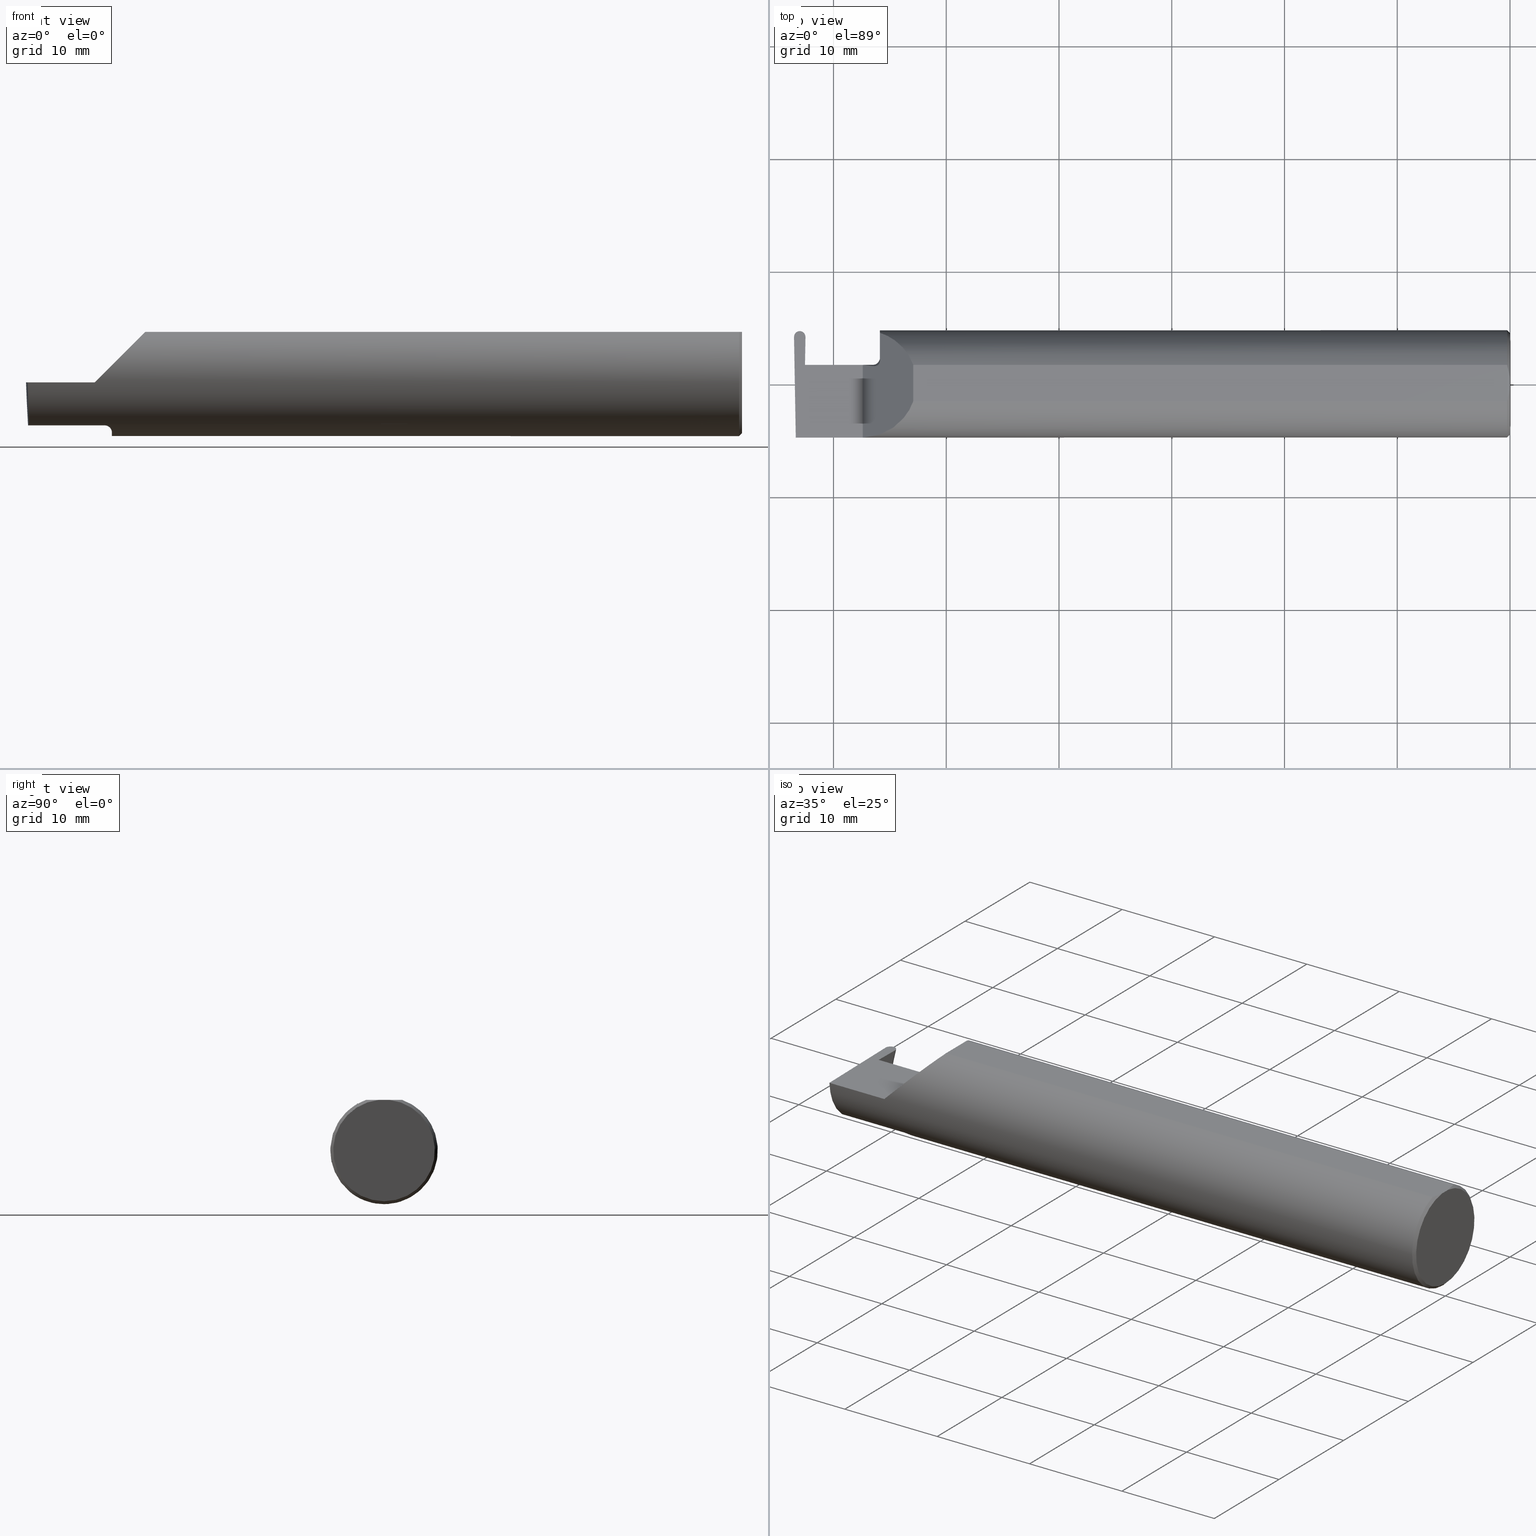
[diagram: canonical four-view strip — front | top / right | iso, engineering-drawing reading convention]
A machine part, canonical four-view strip (front | top / right | iso — engineering-drawing reading convention). The complete STEP part file that produces these views, byte-faithful:
ISO-10303-21;
HEADER;
FILE_DESCRIPTION (( 'STEP AP203' ),
    '1' );
FILE_NAME ('222998-LHGFR039-4.STEP',
    '2024-09-16T19:26:08',
    ( '' ),
    ( '' ),
    'SwSTEP 2.0',
    'SolidWorks 2024',
    '' );
FILE_SCHEMA (( 'CONFIG_CONTROL_DESIGN' ));
ENDSEC;

DATA;
#1 = CARTESIAN_POINT ( 'NONE',  ( -2.225000000000000089, 0.06235952145814824960, 0.03500000000000001721 ) ) ;
#2 = DIRECTION ( 'NONE',  ( 0.000000000000000000, 1.000000000000000000, 0.000000000000000000 ) ) ;
#3 = DIRECTION ( 'NONE',  ( 1.342342146396802078E-16, -1.000000000000000000, 0.000000000000000000 ) ) ;
#4 = DIRECTION ( 'NONE',  ( -0.03858184836401801904, -0.3087869137032490663, -0.9503484007996426675 ) ) ;
#5 = ORIENTED_EDGE ( 'NONE', *, *, #510, .F. ) ;
#6 = EDGE_CURVE ( 'NONE', #422, #271, #44, .T. ) ;
#7 = DIRECTION ( 'NONE',  ( 0.01745240643727692317, -0.9998476951563912696, -8.711430322362906158E-17 ) ) ;
#8 = CARTESIAN_POINT ( 'NONE',  ( 0.000000000000000000, -0.06327716807822586498, 0.1764999999999998792 ) ) ;
#9 = ORIENTED_EDGE ( 'NONE', *, *, #355, .T. ) ;
#10 = CC_DESIGN_PERSON_AND_ORGANIZATION_ASSIGNMENT ( #161, #435, ( #114 ) ) ;
#11 = CARTESIAN_POINT ( 'NONE',  ( -2.476052158195895192, 0.1950338670565867627, 0.09714126877284541550 ) ) ;
#12 = CARTESIAN_POINT ( 'NONE',  ( 0.000000000000000000, 0.000000000000000000, 0.000000000000000000 ) ) ;
#13 = VERTEX_POINT ( 'NONE', #498 ) ;
#14 = CARTESIAN_POINT ( 'NONE',  ( -2.461673250476406061, 0.06649999999999985090, 0.000000000000000000 ) ) ;
#15 = CARTESIAN_POINT ( 'NONE',  ( -2.467673046314851515, -2.404391407359919519, -0.08275932408513385352 ) ) ;
#16 = VERTEX_POINT ( 'NONE', #329 ) ;
#17 = EDGE_CURVE ( 'NONE', #396, #670, #700, .T. ) ;
#18 =( BOUNDED_CURVE ( )  B_SPLINE_CURVE ( 3, ( #358, #576, #144, #365 ),
 .UNSPECIFIED., .F., .T. ) 
 B_SPLINE_CURVE_WITH_KNOTS ( ( 4, 4 ),
 ( 1.570796326794914544, 1.636189208186702881 ),
 .UNSPECIFIED. ) 
 CURVE ( )  GEOMETRIC_REPRESENTATION_ITEM ( )  RATIONAL_B_SPLINE_CURVE ( ( 1.000000000000000000, 0.9996436793342354798, 0.9996436793342354798, 1.000000000000000000 ) ) 
 REPRESENTATION_ITEM ( '' )  );
#19 = VECTOR ( 'NONE', #240, 39.37007874015748143 ) ;
#20 = MECHANICAL_CONTEXT ( 'NONE', #536, 'mechanical' ) ;
#21 = CARTESIAN_POINT ( 'NONE',  ( -2.260000000000000231, 0.06649999999999985090, 2.939152317953647352E-17 ) ) ;
#22 = EDGE_CURVE ( 'NONE', #250, #369, #325, .T. ) ;
#23 = ORIENTED_EDGE ( 'NONE', *, *, #6, .F. ) ;
#24 = CARTESIAN_POINT ( 'NONE',  ( -2.454248160353849961, 0.06613460753897326683, -0.01046347106162535609 ) ) ;
#25 = DIRECTION ( 'NONE',  ( -1.000000000000000000, 4.597460811137283626E-16, 0.000000000000000000 ) ) ;
#26 = EDGE_LOOP ( 'NONE', ( #399, #95, #407, #597 ) ) ;
#27 = FACE_OUTER_BOUND ( 'NONE', #524, .T. ) ;
#28 = ORIENTED_EDGE ( 'NONE', *, *, #415, .F. ) ;
#29 = EDGE_CURVE ( 'NONE', #98, #65, #208, .T. ) ;
#30 = CIRCLE ( 'NONE', #126, 0.1875000000000000278 ) ;
#31 = DIRECTION ( 'NONE',  ( 1.000000000000000000, -4.597460811137283626E-16, -0.000000000000000000 ) ) ;
#32 = CARTESIAN_POINT ( 'NONE',  ( 0.000000000000000000, 0.000000000000000000, 0.000000000000000000 ) ) ;
#33 = VECTOR ( 'NONE', #406, 39.37007874015748143 ) ;
#34 = EDGE_LOOP ( 'NONE', ( #575, #680, #317, #486, #622, #190, #639, #471, #453 ) ) ;
#35 = APPROVAL_DATE_TIME ( #315, #293 ) ;
#36 = APPROVAL ( #648, 'UNSPECIFIED' ) ;
#37 = CARTESIAN_POINT ( 'NONE',  ( -2.491081625543046130, 0.1709496480863398338, -0.03920340345680967814 ) ) ;
#38 = ORIENTED_EDGE ( 'NONE', *, *, #87, .F. ) ;
#39 = CARTESIAN_POINT ( 'NONE',  ( -2.200000000000000178, 0.1874999999999999445, 0.000000000000000000 ) ) ;
#40 = ORIENTED_EDGE ( 'NONE', *, *, #559, .F. ) ;
#41 = EDGE_CURVE ( 'NONE', #16, #632, #493, .T. ) ;
#42 = AXIS2_PLACEMENT_3D ( 'NONE', #153, #541, #205 ) ;
#43 = FACE_OUTER_BOUND ( 'NONE', #360, .T. ) ;
#44 = LINE ( 'NONE', #50, #252 ) ;
#45 = ADVANCED_FACE ( 'NONE', ( #441 ), #336, .T. ) ;
#46 = CARTESIAN_POINT ( 'NONE',  ( -2.462797441937035980, 0.1408215355924573031, -0.06933151595069252104 ) ) ;
#47 =( BOUNDED_CURVE ( )  B_SPLINE_CURVE ( 3, ( #297, #117, #290, #551 ),
 .UNSPECIFIED., .F., .F. ) 
 B_SPLINE_CURVE_WITH_KNOTS ( ( 4, 4 ),
 ( 1.683182027770899536, 3.259781963246014325 ),
 .UNSPECIFIED. ) 
 CURVE ( )  GEOMETRIC_REPRESENTATION_ITEM ( )  RATIONAL_B_SPLINE_CURVE ( ( 1.000000000000000000, 0.8033679476376960338, 0.8033679476376960338, 1.000000000000000000 ) ) 
 REPRESENTATION_ITEM ( '' )  );
#48 = CARTESIAN_POINT ( 'NONE',  ( -2.200000000000000178, 0.1776407892349053386, 0.05999999999999953981 ) ) ;
#49 = DIRECTION ( 'NONE',  ( -0.000000000000000000, -0.7071067811865434649, -0.7071067811865515695 ) ) ;
#50 = CARTESIAN_POINT ( 'NONE',  ( -2.083499999999998575, -0.2500000000000000555, 0.1764999999999998792 ) ) ;
#51 = APPLICATION_CONTEXT ( 'configuration controlled 3d designs of mechanical parts and assemblies' ) ;
#52 = ORIENTED_EDGE ( 'NONE', *, *, #22, .F. ) ;
#53 = PERSON_AND_ORGANIZATION ( #61, #434 ) ;
#54 = CARTESIAN_POINT ( 'NONE',  ( -2.479744952083222209, 0.1844999999999999696, 0.000000000000000000 ) ) ;
#55 = CIRCLE ( 'NONE', #168, 0.1750000000000001277 ) ;
#56 = CARTESIAN_POINT ( 'NONE',  ( -2.476527545332700253, 0.1549393306165267881, -0.09097838550939568725 ) ) ;
#57 = AXIS2_PLACEMENT_3D ( 'NONE', #580, #361, #302 ) ;
#58 = CYLINDRICAL_SURFACE ( 'NONE', #91, 0.01999999999999999001 ) ;
#59 = CYLINDRICAL_SURFACE ( 'NONE', #615, 0.01999999999999998307 ) ;
#60 = LINE ( 'NONE', #341, #33 ) ;
#61 = PERSON ( 'UNSPECIFIED', 'UNSPECIFIED', 'UNSPECIFIED', ('UNSPECIFIED'), ('UNSPECIFIED'), ('UNSPECIFIED') ) ;
#62 = CARTESIAN_POINT ( 'NONE',  ( -2.222331837506049901, 0.06171927743178083625, 0.03766816249394999011 ) ) ;
#63 = FACE_OUTER_BOUND ( 'NONE', #386, .T. ) ;
#64 = AXIS2_PLACEMENT_3D ( 'NONE', #617, #443, #440 ) ;
#65 = VERTEX_POINT ( 'NONE', #548 ) ;
#66 = AXIS2_PLACEMENT_3D ( 'NONE', #684, #688, #243 ) ;
#67 = DIRECTION ( 'NONE',  ( -0.03490480639812536257, 0.000000000000000000, 0.9993906415863165194 ) ) ;
#68 = LINE ( 'NONE', #291, #456 ) ;
#69 = ORIENTED_EDGE ( 'NONE', *, *, #355, .F. ) ;
#70 = CARTESIAN_POINT ( 'NONE',  ( -2.461673250476406061, 0.06649999999999985090, 9.464000087685198136E-21 ) ) ;
#71 = DIRECTION ( 'NONE',  ( 1.000000000000000000, 0.000000000000000000, 1.224646799147353947E-16 ) ) ;
#72 = EDGE_CURVE ( 'NONE', #564, #150, #609, .T. ) ;
#73 = VERTEX_POINT ( 'NONE', #322 ) ;
#74 = CARTESIAN_POINT ( 'NONE',  ( -2.219643712645606559, 0.06142137645965354414, 0.04035628735439345666 ) ) ;
#75 = EDGE_CURVE ( 'NONE', #175, #102, #389, .T. ) ;
#76 = CARTESIAN_POINT ( 'NONE',  ( -0.009999999999999927350, 0.06327716807822586498, 0.1764999999999998792 ) ) ;
#77 = ORIENTED_EDGE ( 'NONE', *, *, #363, .T. ) ;
#78 = AXIS2_PLACEMENT_3D ( 'NONE', #39, #25, #631 ) ;
#79 = CC_DESIGN_APPROVAL ( #36, ( #114 ) ) ;
#80 = CLOSED_SHELL ( 'NONE', ( #256, #280, #583, #179, #367, #226, #45, #151, #334, #685, #499, #705, #437, #552, #529, #120, #445, #539, #502 ) ) ;
#81 = FACE_OUTER_BOUND ( 'NONE', #34, .T. ) ;
#82 = PLANE ( 'NONE',  #57 ) ;
#83 = VERTEX_POINT ( 'NONE', #600 ) ;
#84 = LINE ( 'NONE', #675, #535 ) ;
#85 = CARTESIAN_POINT ( 'NONE',  ( -2.498079812865068750, 0.1582181512725873151, -0.05193490027056232167 ) ) ;
#86 = ORIENTED_EDGE ( 'NONE', *, *, #149, .T. ) ;
#87 = EDGE_CURVE ( 'NONE', #271, #632, #147, .T. ) ;
#88 = LINE ( 'NONE', #308, #579 ) ;
#89 = CARTESIAN_POINT ( 'NONE',  ( -2.225000000000000089, 0.06235952145814824960, 0.03500000000000001721 ) ) ;
#90 = ORIENTED_EDGE ( 'NONE', *, *, #550, .T. ) ;
#91 = AXIS2_PLACEMENT_3D ( 'NONE', #207, #425, #427 ) ;
#92 = VECTOR ( 'NONE', #397, 39.37007874015748143 ) ;
#93 = CALENDAR_DATE ( 2024, 16, 9 ) ;
#94 = DIRECTION ( 'NONE',  ( -1.000000000000000000, 0.000000000000000000, 0.000000000000000000 ) ) ;
#95 = ORIENTED_EDGE ( 'NONE', *, *, #651, .F. ) ;
#96 =( NAMED_UNIT ( * ) PLANE_ANGLE_UNIT ( ) SI_UNIT ( $, .RADIAN. ) );
#97 = DIRECTION ( 'NONE',  ( 0.000000000000000000, -1.000000000000000000, 0.000000000000000000 ) ) ;
#98 = VERTEX_POINT ( 'NONE', #160 ) ;
#99 = EDGE_CURVE ( 'NONE', #650, #619, #332, .T. ) ;
#100 = DATE_AND_TIME ( #373, #125 ) ;
#101 = DIRECTION ( 'NONE',  ( -0.000000000000000000, -1.000000000000000000, -8.711249979796742745E-17 ) ) ;
#102 = VERTEX_POINT ( 'NONE', #655 ) ;
#103 = APPROVAL_ROLE ( '' ) ;
#104 = AXIS2_PLACEMENT_3D ( 'NONE', #495, #653, #101 ) ;
#105 = DIRECTION ( 'NONE',  ( -0.7071067811865523467, 0.000000000000000000, -0.7071067811865426878 ) ) ;
#106 = VERTEX_POINT ( 'NONE', #604 ) ;
#107 = FACE_OUTER_BOUND ( 'NONE', #416, .T. ) ;
#108 = DIRECTION ( 'NONE',  ( 0.000000000000000000, 1.000000000000000000, 0.000000000000000000 ) ) ;
#109 = EDGE_CURVE ( 'NONE', #73, #247, #282, .T. ) ;
#110 = SHAPE_DEFINITION_REPRESENTATION ( #143, #549 ) ;
#111 = FACE_OUTER_BOUND ( 'NONE', #187, .T. ) ;
#112 = CARTESIAN_POINT ( 'NONE',  ( 0.000000000000000000, 0.000000000000000000, 0.000000000000000000 ) ) ;
#113 = CARTESIAN_POINT ( 'NONE',  ( -2.459982749943019797, 0.1633487106945233358, 0.000000000000000000 ) ) ;
#114 = PRODUCT_DEFINITION_FORMATION_WITH_SPECIFIED_SOURCE ( 'ANY', '', #333, .NOT_KNOWN. ) ;
#115 = CARTESIAN_POINT ( 'NONE',  ( -2.459973378056905080, 0.1634237178782527444, 0.0002308483745339323472 ) ) ;
#116 = VECTOR ( 'NONE', #295, 39.37007874015748143 ) ;
#117 = CARTESIAN_POINT ( 'NONE',  ( -2.500199259956601860, 0.1757239095557345532, -2.477352571440049085E-18 ) ) ;
#118 = CARTESIAN_POINT ( 'NONE',  ( -2.495384912923582998, 0.1067702593436240383, -0.1033827921995262022 ) ) ;
#119 = CARTESIAN_POINT ( 'NONE',  ( -2.492943049790546262, 0.06015305154315075259, -0.1500000000000000500 ) ) ;
#120 = ADVANCED_FACE ( 'NONE', ( #669 ), #570, .F. ) ;
#121 = DIRECTION ( 'NONE',  ( 1.000000000000000000, -4.597460811137283626E-16, -0.000000000000000000 ) ) ;
#122 = ORIENTED_EDGE ( 'NONE', *, *, #565, .T. ) ;
#123 = CARTESIAN_POINT ( 'NONE',  ( -2.454613552814876698, 0.06649999999999985090, 0.000000000000000000 ) ) ;
#124 = CARTESIAN_POINT ( 'NONE',  ( -2.200000000000000178, -0.07403853252698160137, -0.1723521670158846830 ) ) ;
#125 = LOCAL_TIME ( 12, 26, 8.000000000000000000, #318 ) ;
#126 = AXIS2_PLACEMENT_3D ( 'NONE', #344, #526, #678 ) ;
#127 = ORIENTED_EDGE ( 'NONE', *, *, #87, .T. ) ;
#128 = VECTOR ( 'NONE', #452, 39.37007874015748143 ) ;
#129 = LINE ( 'NONE', #657, #466 ) ;
#130 = PLANE ( 'NONE',  #525 ) ;
#131 = ORIENTED_EDGE ( 'NONE', *, *, #75, .F. ) ;
#132 = EDGE_CURVE ( 'NONE', #259, #83, #306, .T. ) ;
#133 = DIRECTION ( 'NONE',  ( 0.9992386149554827179, 0.01744177490282357301, 0.03489949670250104552 ) ) ;
#134 = CARTESIAN_POINT ( 'NONE',  ( -2.213208340743105129, -0.1123268376040813116, -0.1501472573737382687 ) ) ;
#135 = ORIENTED_EDGE ( 'NONE', *, *, #29, .T. ) ;
#136 = APPROVAL_ROLE ( '' ) ;
#137 = DIRECTION ( 'NONE',  ( 0.7071067811865436870, 0.000000000000000000, -0.7071067811865514585 ) ) ;
#138 = ORIENTED_EDGE ( 'NONE', *, *, #172, .T. ) ;
#139 = VECTOR ( 'NONE', #198, 39.37007874015748143 ) ;
#140 =( CONVERSION_BASED_UNIT ( 'INCH', #368 ) LENGTH_UNIT ( ) NAMED_UNIT ( #606 ) );
#141 = CARTESIAN_POINT ( 'NONE',  ( -2.467183016265471096, -0.08350000000000000477, -0.1500000000000000777 ) ) ;
#142 = ORIENTED_EDGE ( 'NONE', *, *, #132, .T. ) ;
#143 = PRODUCT_DEFINITION_SHAPE ( 'NONE', 'NONE',  #215 ) ;
#144 = CARTESIAN_POINT ( 'NONE',  ( -2.479983000000000271, 0.1755984408663672502, -0.02735005477480599925 ) ) ;
#145 = ORIENTED_EDGE ( 'NONE', *, *, #300, .T. ) ;
#146 = DIRECTION ( 'NONE',  ( -1.000000000000000000, 0.000000000000000000, 0.000000000000000000 ) ) ;
#147 =( BOUNDED_CURVE ( )  B_SPLINE_CURVE ( 3, ( #538, #279, #491, #48 ),
 .UNSPECIFIED., .F., .T. ) 
 B_SPLINE_CURVE_WITH_KNOTS ( ( 4, 4 ),
 ( 0.3442366722172838234, 1.245066839500269085 ),
 .UNSPECIFIED. ) 
 CURVE ( )  GEOMETRIC_REPRESENTATION_ITEM ( )  RATIONAL_B_SPLINE_CURVE ( ( 1.000000000000000000, 0.9335109851393532665, 0.9335109851393532665, 1.000000000000000000 ) ) 
 REPRESENTATION_ITEM ( '' )  );
#148 = ORIENTED_EDGE ( 'NONE', *, *, #488, .F. ) ;
#149 = EDGE_CURVE ( 'NONE', #362, #422, #298, .T. ) ;
#150 = VERTEX_POINT ( 'NONE', #618 ) ;
#151 = ADVANCED_FACE ( 'NONE', ( #454 ), #561, .F. ) ;
#152 = DATE_TIME_ROLE ( 'classification_date' ) ;
#153 = CARTESIAN_POINT ( 'NONE',  ( -2.225000000000000089, -0.08350000000000012967, 0.000000000000000000 ) ) ;
#154 = ORIENTED_EDGE ( 'NONE', *, *, #394, .T. ) ;
#155 = DIRECTION ( 'NONE',  ( 0.000000000000000000, -0.7071067811865515695, 0.7071067811865434649 ) ) ;
#156 = ORIENTED_EDGE ( 'NONE', *, *, #300, .F. ) ;
#157 = CARTESIAN_POINT ( 'NONE',  ( -2.467183016265471096, -0.08350000000000000477, -0.1500000000000000777 ) ) ;
#158 = EDGE_CURVE ( 'NONE', #98, #531, #232, .T. ) ;
#159 = VECTOR ( 'NONE', #2, 39.37007874015748143 ) ;
#160 = CARTESIAN_POINT ( 'NONE',  ( -2.497168558062964561, 0.1408215355924573031, -0.06933151595069254880 ) ) ;
#161 = PERSON_AND_ORGANIZATION ( #61, #434 ) ;
#162 = LINE ( 'NONE', #641, #627 ) ;
#163 = DIRECTION ( 'NONE',  ( -1.000000000000000000, 0.000000000000000000, 0.000000000000000000 ) ) ;
#164 = CC_DESIGN_DATE_AND_TIME_ASSIGNMENT ( #481, #598, ( #215 ) ) ;
#165 = CARTESIAN_POINT ( 'NONE',  ( -2.491841469758325989, -0.1875000000000000555, -0.05777037557894454389 ) ) ;
#166 = DIRECTION ( 'NONE',  ( 0.03858184836401813700, -0.3087869137032490108, -0.9503484007996424454 ) ) ;
#167 = DIRECTION ( 'NONE',  ( 0.000000000000000000, -0.9993908270190957621, 0.03489949670250104552 ) ) ;
#168 = AXIS2_PLACEMENT_3D ( 'NONE', #316, #574, #97 ) ;
#169 = SECURITY_CLASSIFICATION ( '', '', #484 ) ;
#170 = EDGE_LOOP ( 'NONE', ( #658, #533, #255, #687, #511 ) ) ;
#171 = AXIS2_PLACEMENT_3D ( 'NONE', #15, #244, #229 ) ;
#172 = EDGE_CURVE ( 'NONE', #392, #670, #654, .T. ) ;
#173 = DIRECTION ( 'NONE',  ( 1.342342146396802078E-16, -1.000000000000000000, 0.000000000000000000 ) ) ;
#174 = DIRECTION ( 'NONE',  ( 1.224646799147353947E-16, 0.000000000000000000, -1.000000000000000000 ) ) ;
#175 = VERTEX_POINT ( 'NONE', #555 ) ;
#176 = CARTESIAN_POINT ( 'NONE',  ( -2.200000000000000178, 0.06613460753897340560, -0.01046347106162164899 ) ) ;
#177 = CARTESIAN_POINT ( 'NONE',  ( -2.206307565795738501, -0.1025298007101598380, -0.1570730641124816751 ) ) ;
#178 = ORIENTED_EDGE ( 'NONE', *, *, #651, .T. ) ;
#179 = ADVANCED_FACE ( 'NONE', ( #665 ), #516, .T. ) ;
#180 = CARTESIAN_POINT ( 'NONE',  ( -2.206491315391052144, 0.06504110945230534568, 0.05350868460894738637 ) ) ;
#181 = DIRECTION ( 'NONE',  ( 0.03701368837992478206, -0.7066222423871548752, -0.7066222423871629799 ) ) ;
#182 = VECTOR ( 'NONE', #364, 39.37007874015748143 ) ;
#183 = ORIENTED_EDGE ( 'NONE', *, *, #528, .T. ) ;
#184 = LOCAL_TIME ( 12, 26, 8.000000000000000000, #476 ) ;
#185 = CARTESIAN_POINT ( 'NONE',  ( -2.490509681823388277, -0.07925450592887606227, -0.1500000000000000500 ) ) ;
#186 = CARTESIAN_POINT ( 'NONE',  ( -2.461673250476406061, 0.06649999999999985090, 9.464000087685198136E-21 ) ) ;
#187 = EDGE_LOOP ( 'NONE', ( #135, #183, #403, #222, #292 ) ) ;
#188 = CYLINDRICAL_SURFACE ( 'NONE', #504, 0.1500000000000001055 ) ;
#189 = CARTESIAN_POINT ( 'NONE',  ( -0.005155089261394574240, 0.04892095096109028152, 0.1764999999999998792 ) ) ;
#190 = ORIENTED_EDGE ( 'NONE', *, *, #99, .T. ) ;
#191 = FACE_OUTER_BOUND ( 'NONE', #666, .T. ) ;
#192 = CARTESIAN_POINT ( 'NONE',  ( -2.480221047916777000, 0.1844999999999999696, 0.000000000000000000 ) ) ;
#193 = EDGE_LOOP ( 'NONE', ( #223, #203, #245, #38, #507, #230, #352, #86, #626, #40, #211 ) ) ;
#194 = VECTOR ( 'NONE', #173, 39.37007874015748143 ) ;
#195 = CARTESIAN_POINT ( 'NONE',  ( -2.466962766597742274, 0.06130200698435633866, -0.1488510445587944708 ) ) ;
#196 = VERTEX_POINT ( 'NONE', #513 ) ;
#197 = COORDINATED_UNIVERSAL_TIME_OFFSET ( 8, 0, .BEHIND. ) ;
#198 = DIRECTION ( 'NONE',  ( 1.000000000000000000, -4.597460811137283626E-16, -0.000000000000000000 ) ) ;
#199 = ORIENTED_EDGE ( 'NONE', *, *, #475, .T. ) ;
#200 = EDGE_CURVE ( 'NONE', #106, #556, #284, .T. ) ;
#201 = LINE ( 'NONE', #469, #182 ) ;
#202 = CARTESIAN_POINT ( 'NONE',  ( -2.260000000000000231, -0.2500000000000000555, 2.939152317953647352E-17 ) ) ;
#203 = ORIENTED_EDGE ( 'NONE', *, *, #235, .T. ) ;
#204 = EDGE_CURVE ( 'NONE', #150, #330, #60, .T. ) ;
#205 = DIRECTION ( 'NONE',  ( 0.000000000000000000, -1.000000000000000000, 0.000000000000000000 ) ) ;
#206 = ORIENTED_EDGE ( 'NONE', *, *, #432, .T. ) ;
#207 = CARTESIAN_POINT ( 'NONE',  ( -2.476527545332700253, 0.1359182002906237363, -0.08479804562189673101 ) ) ;
#208 = LINE ( 'NONE', #590, #288 ) ;
#209 = EDGE_CURVE ( 'NONE', #670, #619, #236, .T. ) ;
#210 = CARTESIAN_POINT ( 'NONE',  ( 0.000000000000000000, -0.01881488772222998998, 0.1764999999999998792 ) ) ;
#211 = ORIENTED_EDGE ( 'NONE', *, *, #475, .F. ) ;
#212 = APPROVAL_DATE_TIME ( #269, #36 ) ;
#213 = CC_DESIGN_APPROVAL ( #326, ( #169 ) ) ;
#214 = CIRCLE ( 'NONE', #42, 0.1500000000000001610 ) ;
#215 = PRODUCT_DEFINITION ( 'UNKNOWN', '', #114, #264 ) ;
#216 = CARTESIAN_POINT ( 'NONE',  ( -0.005150925715430529697, -0.04890861373279827701, 0.1764999999999998792 ) ) ;
#217 = APPROVAL_PERSON_ORGANIZATION ( #623, #293, #136 ) ;
#218 = CARTESIAN_POINT ( 'NONE',  ( -2.454369957840858874, 0.06637810356725676320, -0.006981315626310356098 ) ) ;
#219 =( BOUNDED_CURVE ( )  B_SPLINE_CURVE ( 3, ( #157, #388, #278, #547 ),
 .UNSPECIFIED., .F., .T. ) 
 B_SPLINE_CURVE_WITH_KNOTS ( ( 4, 4 ),
 ( 3.176499238629666877, 4.677482395344764399 ),
 .UNSPECIFIED. ) 
 CURVE ( )  GEOMETRIC_REPRESENTATION_ITEM ( )  RATIONAL_B_SPLINE_CURVE ( ( 1.000000000000000000, 0.8209024677461195241, 0.8209024677461195241, 1.000000000000000000 ) ) 
 REPRESENTATION_ITEM ( '' )  );
#220 = PERSON_AND_ORGANIZATION_ROLE ( 'creator' ) ;
#221 = PLANE ( 'NONE',  #313 ) ;
#222 = ORIENTED_EDGE ( 'NONE', *, *, #376, .T. ) ;
#223 = ORIENTED_EDGE ( 'NONE', *, *, #303, .T. ) ;
#224 = CARTESIAN_POINT ( 'NONE',  ( -2.499996951313945726, 0.1641336551803448951, 0.000000000000000000 ) ) ;
#225 = ORIENTED_EDGE ( 'NONE', *, *, #528, .F. ) ;
#226 = ADVANCED_FACE ( 'NONE', ( #63 ), #130, .F. ) ;
#227 = DIRECTION ( 'NONE',  ( 0.000000000000000000, 0.000000000000000000, -1.000000000000000000 ) ) ;
#228 = CIRCLE ( 'NONE', #400, 0.1775000000000002132 ) ;
#229 = DIRECTION ( 'NONE',  ( -0.03547001781079238414, 0.000000000000000000, -0.9993707409347654114 ) ) ;
#230 = ORIENTED_EDGE ( 'NONE', *, *, #625, .F. ) ;
#231 = DIRECTION ( 'NONE',  ( -1.000000000000000000, -1.342342146396802078E-16, 0.000000000000000000 ) ) ;
#232 = LINE ( 'NONE', #118, #347 ) ;
#233 = ORIENTED_EDGE ( 'NONE', *, *, #158, .F. ) ;
#234 = FACE_OUTER_BOUND ( 'NONE', #677, .T. ) ;
#235 = EDGE_CURVE ( 'NONE', #241, #16, #558, .T. ) ;
#236 = LINE ( 'NONE', #567, #128 ) ;
#237 = ORIENTED_EDGE ( 'NONE', *, *, #314, .F. ) ;
#238 = DIRECTION ( 'NONE',  ( 0.000000000000000000, -0.9510565162951534202, 0.3090169943749480619 ) ) ;
#239 = CC_DESIGN_PERSON_AND_ORGANIZATION_ASSIGNMENT ( #701, #220, ( #215 ) ) ;
#240 = DIRECTION ( 'NONE',  ( -1.000000000000000000, 0.000000000000000000, 0.000000000000000000 ) ) ;
#241 = VERTEX_POINT ( 'NONE', #509 ) ;
#242 = AXIS2_PLACEMENT_3D ( 'NONE', #112, #163, #337 ) ;
#243 = DIRECTION ( 'NONE',  ( 1.000000000000000000, 0.000000000000000000, 0.000000000000000000 ) ) ;
#244 = DIRECTION ( 'NONE',  ( -0.9993699743034456517, 0.001238639365660501373, 0.03546999060124396419 ) ) ;
#245 = ORIENTED_EDGE ( 'NONE', *, *, #41, .T. ) ;
#246 = DIRECTION ( 'NONE',  ( 0.02596452850600222337, 0.7068683906002054540, 0.7068683906002135586 ) ) ;
#247 = VERTEX_POINT ( 'NONE', #562 ) ;
#248 = EDGE_CURVE ( 'NONE', #632, #13, #68, .T. ) ;
#249 = CARTESIAN_POINT ( 'NONE',  ( -2.083499999999998575, -0.06327716807822589273, 0.1764999999999998792 ) ) ;
#250 = VERTEX_POINT ( 'NONE', #192 ) ;
#251 = AXIS2_PLACEMENT_3D ( 'NONE', #14, #167, #285 ) ;
#252 = VECTOR ( 'NONE', #108, 39.37007874015748143 ) ;
#253 = PERSON_AND_ORGANIZATION ( #61, #434 ) ;
#254 = DIRECTION ( 'NONE',  ( 0.000000000000000000, 0.000000000000000000, -1.000000000000000000 ) ) ;
#255 = ORIENTED_EDGE ( 'NONE', *, *, #415, .T. ) ;
#256 = ADVANCED_FACE ( 'NONE', ( #518 ), #423, .T. ) ;
#257 =( NAMED_UNIT ( * ) SI_UNIT ( $, .STERADIAN. ) SOLID_ANGLE_UNIT ( ) );
#258 = LINE ( 'NONE', #473, #534 ) ;
#259 = VERTEX_POINT ( 'NONE', #319 ) ;
#260 = CALENDAR_DATE ( 2024, 16, 9 ) ;
#261 = CARTESIAN_POINT ( 'NONE',  ( -2.342483000000000093, -0.1175359281437123732, -0.1460874929465081906 ) ) ;
#262 = ORIENTED_EDGE ( 'NONE', *, *, #656, .F. ) ;
#263 = LOCAL_TIME ( 12, 26, 8.000000000000000000, #487 ) ;
#264 = DESIGN_CONTEXT ( 'detailed design', #51, 'design' ) ;
#265 = CARTESIAN_POINT ( 'NONE',  ( -2.468884374456953967, 0.1709496480863403056, -0.03920340345680917160 ) ) ;
#266 = CARTESIAN_POINT ( 'NONE',  ( -2.489978125682272392, -0.1175359281437123038, -0.1460874929465081906 ) ) ;
#267 =( BOUNDED_CURVE ( )  B_SPLINE_CURVE ( 3, ( #585, #693, #638, #249 ),
 .UNSPECIFIED., .F., .F. ) 
 B_SPLINE_CURVE_WITH_KNOTS ( ( 4, 4 ),
 ( 4.712388980384689674, 5.938948634962302187 ),
 .UNSPECIFIED. ) 
 CURVE ( )  GEOMETRIC_REPRESENTATION_ITEM ( )  RATIONAL_B_SPLINE_CURVE ( ( 1.000000000000000000, 0.8785098042021781684, 0.8785098042021781684, 1.000000000000000000 ) ) 
 REPRESENTATION_ITEM ( '' )  );
#268 = MANIFOLD_SOLID_BREP ( 'Cut-Extrude1', #80 ) ;
#269 = DATE_AND_TIME ( #260, #694 ) ;
#270 = CARTESIAN_POINT ( 'NONE',  ( -2.461886187134930903, 0.1582181512725876760, -0.05193490027056192615 ) ) ;
#271 = VERTEX_POINT ( 'NONE', #572 ) ;
#272 = LINE ( 'NONE', #482, #442 ) ;
#273 = ORIENTED_EDGE ( 'NONE', *, *, #314, .T. ) ;
#274 = PERSON_AND_ORGANIZATION_ROLE ( 'design_supplier' ) ;
#275 = AXIS2_PLACEMENT_3D ( 'NONE', #202, #137, #465 ) ;
#276 = APPROVAL_PERSON_ORGANIZATION ( #327, #36, #103 ) ;
#277 = LOCAL_TIME ( 12, 26, 8.000000000000000000, #197 ) ;
#278 = CARTESIAN_POINT ( 'NONE',  ( -2.464993749086574315, 0.06033930266824102245, -0.09334019187383270355 ) ) ;
#279 = CARTESIAN_POINT ( 'NONE',  ( -2.103172709306314836, 0.1181505655139686445, 0.1568272906936838129 ) ) ;
#280 = ADVANCED_FACE ( 'NONE', ( #530 ), #82, .T. ) ;
#281 = CARTESIAN_POINT ( 'NONE',  ( -2.489978125682272392, -0.1175359281437123038, -0.1460874929465081906 ) ) ;
#282 = LINE ( 'NONE', #115, #546 ) ;
#283 = CARTESIAN_POINT ( 'NONE',  ( 0.000000000000000000, 0.4266143610135497144, 0.1764999999999998792 ) ) ;
#284 = LINE ( 'NONE', #186, #116 ) ;
#285 = DIRECTION ( 'NONE',  ( -0.000000000000000000, -0.03489949670250104552, -0.9993908270190957621 ) ) ;
#286 = VECTOR ( 'NONE', #512, 39.37007874015748143 ) ;
#287 = CARTESIAN_POINT ( 'NONE',  ( -2.225000000000000089, -0.1175359281437121373, -0.1460874929465083294 ) ) ;
#288 = VECTOR ( 'NONE', #644, 39.37007874015748854 ) ;
#289 = ORIENTED_EDGE ( 'NONE', *, *, #603, .T. ) ;
#290 = CARTESIAN_POINT ( 'NONE',  ( -2.491999529393824186, 0.1844999999999999141, -1.473175192682375366E-18 ) ) ;
#291 = CARTESIAN_POINT ( 'NONE',  ( -2.200000000000000178, -0.2500000000000001110, 0.05999999999999934552 ) ) ;
#292 = ORIENTED_EDGE ( 'NONE', *, *, #342, .T. ) ;
#293 = APPROVAL ( #578, 'UNSPECIFIED' ) ;
#294 = PLANE ( 'NONE',  #251 ) ;
#295 = DIRECTION ( 'NONE',  ( 0.03549161113179510885, 0.03487750912278164694, 0.9987611851171729338 ) ) ;
#296 = ORIENTED_EDGE ( 'NONE', *, *, #72, .F. ) ;
#297 = CARTESIAN_POINT ( 'NONE',  ( -2.499983250056980744, 0.1633487106945232803, 0.000000000000000000 ) ) ;
#298 = LINE ( 'NONE', #8, #19 ) ;
#299 = ORIENTED_EDGE ( 'NONE', *, *, #248, .F. ) ;
#300 = EDGE_CURVE ( 'NONE', #259, #175, #692, .T. ) ;
#301 = DIRECTION ( 'NONE',  ( -0.000000000000000000, -0.3090169943749481729, -0.9510565162951533091 ) ) ;
#302 = DIRECTION ( 'NONE',  ( 1.000000000000000000, 0.000000000000000000, -0.000000000000000000 ) ) ;
#303 = EDGE_CURVE ( 'NONE', #564, #241, #305, .T. ) ;
#304 = ORIENTED_EDGE ( 'NONE', *, *, #408, .F. ) ;
#305 = LINE ( 'NONE', #261, #139 ) ;
#306 = B_SPLINE_CURVE_WITH_KNOTS ( 'NONE', 3,
 ( #395, #676, #189, #76 ),
 .UNSPECIFIED., .F., .F.,
 ( 4, 4 ),
 ( 0.01189576907519420725, 0.01305603055478470054 ),
 .UNSPECIFIED. ) ;
#307 = ORIENTED_EDGE ( 'NONE', *, *, #109, .F. ) ;
#308 = CARTESIAN_POINT ( 'NONE',  ( -2.461229936036295474, 0.2173748088308057602, 0.007221757287656794741 ) ) ;
#309 = EDGE_CURVE ( 'NONE', #396, #422, #267, .T. ) ;
#310 = CARTESIAN_POINT ( 'NONE',  ( -2.479744952083222209, 0.1844999999999999696, 0.000000000000000000 ) ) ;
#311 = ORIENTED_EDGE ( 'NONE', *, *, #479, .F. ) ;
#312 = CC_DESIGN_SECURITY_CLASSIFICATION ( #169, ( #114 ) ) ;
#313 = AXIS2_PLACEMENT_3D ( 'NONE', #602, #155, #49 ) ;
#314 = EDGE_CURVE ( 'NONE', #13, #16, #55, .T. ) ;
#315 = DATE_AND_TIME ( #93, #277 ) ;
#316 = CARTESIAN_POINT ( 'NONE',  ( -2.200000000000000178, -0.08350000000000014355, 0.000000000000000000 ) ) ;
#317 = ORIENTED_EDGE ( 'NONE', *, *, #204, .T. ) ;
#318 = COORDINATED_UNIVERSAL_TIME_OFFSET ( 8, 0, .BEHIND. ) ;
#319 = CARTESIAN_POINT ( 'NONE',  ( 5.474064202773561685E-17, 0.01881488772222947303, 0.1764999999999998792 ) ) ;
#320 = ORIENTED_EDGE ( 'NONE', *, *, #235, .F. ) ;
#321 = CARTESIAN_POINT ( 'NONE',  ( -2.459969048686054816, 0.1641336551803448951, 0.000000000000000000 ) ) ;
#322 = CARTESIAN_POINT ( 'NONE',  ( -2.459982749943019797, 0.1633487106945233358, 0.000000000000000000 ) ) ;
#323 = DATE_AND_TIME ( #429, #263 ) ;
#324 = DIRECTION ( 'NONE',  ( 0.03858184836401802598, 0.3087869137032490663, 0.9503484007996426675 ) ) ;
#325 = LINE ( 'NONE', #56, #593 ) ;
#326 = APPROVAL ( #601, 'UNSPECIFIED' ) ;
#327 = PERSON_AND_ORGANIZATION ( #61, #434 ) ;
#328 = PLANE ( 'NONE',  #503 ) ;
#329 = CARTESIAN_POINT ( 'NONE',  ( -2.200000000000000178, -0.06888323353293394902, -0.1743885034572155990 ) ) ;
#330 = VERTEX_POINT ( 'NONE', #141 ) ;
#331 = EDGE_LOOP ( 'NONE', ( #145, #695, #447, #467 ) ) ;
#332 = B_SPLINE_CURVE_WITH_KNOTS ( 'NONE', 3,
 ( #383, #218, #438, #496 ),
 .UNSPECIFIED., .F., .F.,
 ( 4, 4 ),
 ( 0.000000000000000000, 1.000000000000000000 ),
 .UNSPECIFIED. ) ;
#333 = PRODUCT ( '222998-LHGFR039-4', '222998-LHGFR039-4', '', ( #20 ) ) ;
#334 = ADVANCED_FACE ( 'NONE', ( #470 ), #418, .T. ) ;
#335 = DIRECTION ( 'NONE',  ( 0.01745240643727649296, 0.9998476951563912696, 0.000000000000000000 ) ) ;
#336 = CONICAL_SURFACE ( 'NONE', #242, 0.1775000000000002132, 0.7853981633974415066 ) ;
#337 = DIRECTION ( 'NONE',  ( 0.000000000000000000, 0.000000000000000000, -1.000000000000000000 ) ) ;
#338 = PLANE ( 'NONE',  #64 ) ;
#339 = DIRECTION ( 'NONE',  ( 0.000000000000000000, 0.000000000000000000, 1.000000000000000000 ) ) ;
#340 = CARTESIAN_POINT ( 'NONE',  ( -2.204146777195072016, 0.06718032564037056120, 0.05585322280492709124 ) ) ;
#341 = CARTESIAN_POINT ( 'NONE',  ( -2.733733874261723873, -0.08349999999999889455, -0.1500000000000000500 ) ) ;
#342 = EDGE_CURVE ( 'NONE', #478, #98, #563, .T. ) ;
#343 = EDGE_LOOP ( 'NONE', ( #5, #142, #433, #23, #592, #636 ) ) ;
#344 = CARTESIAN_POINT ( 'NONE',  ( -0.009999999999999927350, 0.000000000000000000, 0.000000000000000000 ) ) ;
#345 = VECTOR ( 'NONE', #7, 39.37007874015748854 ) ;
#346 = CARTESIAN_POINT ( 'NONE',  ( -2.200000000000000178, -0.06888323353293394902, -0.1743885034572155990 ) ) ;
#347 = VECTOR ( 'NONE', #181, 39.37007874015748854 ) ;
#348 = VERTEX_POINT ( 'NONE', #195 ) ;
#349 = CC_DESIGN_PERSON_AND_ORGANIZATION_ASSIGNMENT ( #424, #540, ( #169 ) ) ;
#350 = DIRECTION ( 'NONE',  ( 1.000000000000000000, -0.000000000000000000, -0.000000000000000000 ) ) ;
#351 = CARTESIAN_POINT ( 'NONE',  ( -2.500000000000000000, -0.2500000000000000555, 0.000000000000000000 ) ) ;
#352 = ORIENTED_EDGE ( 'NONE', *, *, #550, .F. ) ;
#353 = CARTESIAN_POINT ( 'NONE',  ( -2.461673250476406061, 0.06649999999999985090, 0.000000000000000000 ) ) ;
#354 = CARTESIAN_POINT ( 'NONE',  ( -2.202962159819173760, -0.09349862836945414812, -0.1626109282809109491 ) ) ;
#355 = EDGE_CURVE ( 'NONE', #65, #614, #258, .T. ) ;
#356 = ORIENTED_EDGE ( 'NONE', *, *, #589, .T. ) ;
#357 = APPLICATION_PROTOCOL_DEFINITION ( 'international standard', 'config_control_design', 1994, #536 ) ;
#358 = CARTESIAN_POINT ( 'NONE',  ( -2.479982999999999382, 0.1825948014506278694, -0.005863598210452645142 ) ) ;
#359 = VECTOR ( 'NONE', #629, 39.37007874015748854 ) ;
#360 = EDGE_LOOP ( 'NONE', ( #463, #411, #588, #642 ) ) ;
#361 = DIRECTION ( 'NONE',  ( 0.000000000000000000, 0.000000000000000000, 1.000000000000000000 ) ) ;
#362 = VERTEX_POINT ( 'NONE', #410 ) ;
#363 = EDGE_CURVE ( 'NONE', #348, #247, #689, .T. ) ;
#364 = DIRECTION ( 'NONE',  ( -1.000000000000000000, 0.000000000000000000, 0.000000000000000000 ) ) ;
#365 = CARTESIAN_POINT ( 'NONE',  ( -2.479983000000000271, 0.1720864714470108636, -0.03806658009613862748 ) ) ;
#366 = ORIENTED_EDGE ( 'NONE', *, *, #697, .T. ) ;
#367 = ADVANCED_FACE ( 'NONE', ( #27 ), #624, .F. ) ;
#368 = LENGTH_MEASURE_WITH_UNIT ( LENGTH_MEASURE( 0.02539999999999999897 ), #584 );
#369 = VERTEX_POINT ( 'NONE', #421 ) ;
#370 = CARTESIAN_POINT ( 'NONE',  ( -2.200000000000000178, -0.08350000000000014355, 0.000000000000000000 ) ) ;
#371 = CARTESIAN_POINT ( 'NONE',  ( 0.000000000000000000, 0.000000000000000000, 0.000000000000000000 ) ) ;
#372 = EDGE_LOOP ( 'NONE', ( #148, #206, #545, #356 ) ) ;
#373 = CALENDAR_DATE ( 2024, 16, 9 ) ;
#374 = FACE_OUTER_BOUND ( 'NONE', #450, .T. ) ;
#375 = ORIENTED_EDGE ( 'NONE', *, *, #17, .F. ) ;
#376 = EDGE_CURVE ( 'NONE', #369, #478, #18, .T. ) ;
#377 = EDGE_CURVE ( 'NONE', #483, #73, #633, .T. ) ;
#378 = CARTESIAN_POINT ( 'NONE',  ( -2.260000000000000231, -0.1874999999999999722, 2.939152317953647352E-17 ) ) ;
#379 = CARTESIAN_POINT ( 'NONE',  ( -2.490082214447622455, -0.1063650572304025294, -0.1486901179354065405 ) ) ;
#380 = VECTOR ( 'NONE', #335, 39.37007874015748143 ) ;
#381 = VECTOR ( 'NONE', #420, 39.37007874015748143 ) ;
#382 = DIRECTION ( 'NONE',  ( 0.001239419280281303009, 0.9999992319196288060, 8.711058136890303785E-17 ) ) ;
#383 = CARTESIAN_POINT ( 'NONE',  ( -2.454248160353849961, 0.06613460753897326683, -0.01046347106162535609 ) ) ;
#384 = APPROVAL_ROLE ( '' ) ;
#385 = CARTESIAN_POINT ( 'NONE',  ( -0.001595498658593683160, -0.03386685168190704809, 0.1764999999999998792 ) ) ;
#386 = EDGE_LOOP ( 'NONE', ( #366, #225, #9, #630, #474, #419, #178, #154, #582 ) ) ;
#387 = PERSON_AND_ORGANIZATION ( #61, #434 ) ;
#388 = CARTESIAN_POINT ( 'NONE',  ( -2.467080046351378009, -0.0004209026822647253096, -0.1500000000000001055 ) ) ;
#389 = LINE ( 'NONE', #646, #468 ) ;
#390 = B_SPLINE_CURVE_WITH_KNOTS ( 'NONE', 3,
 ( #451, #660, #569, #340, #180, #554, #671, #74, #62, #1 ),
 .UNSPECIFIED., .F., .F.,
 ( 4, 2, 2, 2, 4 ),
 ( 0.0002788109322551124577, 0.0005687008269983671394, 0.0008585907217416217669, 0.001148480616484876503, 0.001438370511228131239 ),
 .UNSPECIFIED. ) ;
#391 = LINE ( 'NONE', #70, #286 ) ;
#392 = VERTEX_POINT ( 'NONE', #89 ) ;
#393 = PLANE ( 'NONE',  #401 ) ;
#394 = EDGE_CURVE ( 'NONE', #556, #73, #643, .T. ) ;
#395 = CARTESIAN_POINT ( 'NONE',  ( 5.474064202773561685E-17, 0.01881488772222947303, 0.1764999999999998792 ) ) ;
#396 = VERTEX_POINT ( 'NONE', #378 ) ;
#397 = DIRECTION ( 'NONE',  ( 1.000000000000000000, -4.597460811137283626E-16, -0.000000000000000000 ) ) ;
#398 = CARTESIAN_POINT ( 'NONE',  ( -2.201844959670647750, -0.08880246195917441965, -0.1652268154298246750 ) ) ;
#399 = ORIENTED_EDGE ( 'NONE', *, *, #200, .T. ) ;
#400 = AXIS2_PLACEMENT_3D ( 'NONE', #702, #649, #699 ) ;
#401 = AXIS2_PLACEMENT_3D ( 'NONE', #224, #133, #67 ) ;
#402 = CARTESIAN_POINT ( 'NONE',  ( -2.225000000000000089, 0.06235952145814824960, 0.03500000000000001721 ) ) ;
#403 = ORIENTED_EDGE ( 'NONE', *, *, #22, .T. ) ;
#404 = EDGE_CURVE ( 'NONE', #392, #241, #214, .T. ) ;
#405 = FACE_OUTER_BOUND ( 'NONE', #170, .T. ) ;
#406 = DIRECTION ( 'NONE',  ( 1.000000000000000000, -0.000000000000000000, -0.000000000000000000 ) ) ;
#407 = ORIENTED_EDGE ( 'NONE', *, *, #99, .F. ) ;
#408 = EDGE_CURVE ( 'NONE', #175, #196, #228, .T. ) ;
#409 = APPLICATION_PROTOCOL_DEFINITION ( 'international standard', 'config_control_design', 1994, #51 ) ;
#410 = CARTESIAN_POINT ( 'NONE',  ( -0.009999999999999927350, -0.06327716807822586498, 0.1764999999999998792 ) ) ;
#411 = ORIENTED_EDGE ( 'NONE', *, *, #603, .F. ) ;
#412 = CARTESIAN_POINT ( 'NONE',  ( -2.457783020643228511, 0.2365510284907098582, 0.02639797694756112340 ) ) ;
#413 = VECTOR ( 'NONE', #436, 39.37007874015748143 ) ;
#414 = EDGE_LOOP ( 'NONE', ( #131, #683, #568, #90 ) ) ;
#415 = EDGE_CURVE ( 'NONE', #369, #483, #162, .T. ) ;
#416 = EDGE_LOOP ( 'NONE', ( #156, #571, #304 ) ) ;
#417 = DIRECTION ( 'NONE',  ( 1.000000000000000000, -0.000000000000000000, -0.000000000000000000 ) ) ;
#418 = PLANE ( 'NONE',  #78 ) ;
#419 = ORIENTED_EDGE ( 'NONE', *, *, #209, .T. ) ;
#420 = DIRECTION ( 'NONE',  ( -1.000000000000000000, 0.000000000000000000, 0.000000000000000000 ) ) ;
#421 = CARTESIAN_POINT ( 'NONE',  ( -2.479982999999999382, 0.1825948014506278694, -0.005863598210452645142 ) ) ;
#422 = VERTEX_POINT ( 'NONE', #430 ) ;
#423 = CONICAL_SURFACE ( 'NONE', #672, 0.1775000000000002132, 0.7853981633974415066 ) ;
#424 = PERSON_AND_ORGANIZATION ( #61, #434 ) ;
#425 = DIRECTION ( 'NONE',  ( 0.03858184836401813700, -0.3087869137032490663, -0.9503484007996425564 ) ) ;
#426 = ORIENTED_EDGE ( 'NONE', *, *, #248, .T. ) ;
#427 = DIRECTION ( 'NONE',  ( 0.000000000000000000, 0.9510565162951530871, -0.3090169943749488390 ) ) ;
#428 = CARTESIAN_POINT ( 'NONE',  ( -2.200000000000000178, 0.000000000000000000, 0.000000000000000000 ) ) ;
#429 = CALENDAR_DATE ( 2024, 16, 9 ) ;
#430 = CARTESIAN_POINT ( 'NONE',  ( -2.083499999999998575, -0.06327716807822589273, 0.1764999999999998792 ) ) ;
#431 = CARTESIAN_POINT ( 'NONE',  ( -2.490435576448724486, -0.08349999999999889455, -0.1500000000000000500 ) ) ;
#432 = EDGE_CURVE ( 'NONE', #330, #586, #272, .T. ) ;
#433 = ORIENTED_EDGE ( 'NONE', *, *, #664, .F. ) ;
#434 = ORGANIZATION ( 'UNSPECIFIED', 'UNSPECIFIED', '' ) ;
#435 = PERSON_AND_ORGANIZATION_ROLE ( 'creator' ) ;
#436 = DIRECTION ( 'NONE',  ( -1.000000000000000000, 0.000000000000000000, 0.000000000000000000 ) ) ;
#437 = ADVANCED_FACE ( 'NONE', ( #374 ), #221, .F. ) ;
#438 = CARTESIAN_POINT ( 'NONE',  ( -2.454491755327868230, 0.06650000000000007294, -0.003490658503990860112 ) ) ;
#439 = DIRECTION ( 'NONE',  ( 1.000000000000000000, -4.597460811137283626E-16, -0.000000000000000000 ) ) ;
#440 = DIRECTION ( 'NONE',  ( -0.03490480639812536950, 0.000000000000000000, -0.9993906415863165194 ) ) ;
#441 = FACE_OUTER_BOUND ( 'NONE', #414, .T. ) ;
#442 = VECTOR ( 'NONE', #382, 39.37007874015748854 ) ;
#443 = DIRECTION ( 'NONE',  ( -0.9992386149554827179, 0.01744177490282314280, 0.03489949670250105246 ) ) ;
#444 = AXIS2_PLACEMENT_3D ( 'NONE', #12, #673, #339 ) ;
#445 = ADVANCED_FACE ( 'NONE', ( #111 ), #58, .T. ) ;
#446 = CARTESIAN_POINT ( 'NONE',  ( -2.225000000000000089, -0.08350000000000014355, 0.000000000000000000 ) ) ;
#447 = ORIENTED_EDGE ( 'NONE', *, *, #625, .T. ) ;
#448 = LINE ( 'NONE', #185, #345 ) ;
#449 = CARTESIAN_POINT ( 'NONE',  ( -2.236476718690367793, 0.06511343940705723032, 0.02352328130963210820 ) ) ;
#450 = EDGE_LOOP ( 'NONE', ( #596, #262, #457, #233, #514, #311 ) ) ;
#451 = CARTESIAN_POINT ( 'NONE',  ( -2.200000000000000178, 0.08089282222773611086, 0.05999999999999949818 ) ) ;
#452 = DIRECTION ( 'NONE',  ( -1.000000000000000000, 4.597460811137283626E-16, 0.000000000000000000 ) ) ;
#453 = ORIENTED_EDGE ( 'NONE', *, *, #404, .T. ) ;
#454 = FACE_OUTER_BOUND ( 'NONE', #573, .T. ) ;
#455 = EDGE_CURVE ( 'NONE', #362, #196, #668, .T. ) ;
#456 = VECTOR ( 'NONE', #635, 39.37007874015748143 ) ;
#457 = ORIENTED_EDGE ( 'NONE', *, *, #464, .T. ) ;
#458 = PERSON_AND_ORGANIZATION_ROLE ( 'design_owner' ) ;
#459 = CARTESIAN_POINT ( 'NONE',  ( -2.248197494504676097, 0.06649999999999998967, 0.01180250549532440088 ) ) ;
#460 = ORIENTED_EDGE ( 'NONE', *, *, #200, .F. ) ;
#461 = CARTESIAN_POINT ( 'NONE',  ( -2.200000000000000178, 0.1776407892349053386, 0.05999999999999953981 ) ) ;
#462 = CARTESIAN_POINT ( 'NONE',  ( -2.479983000000000271, 0.1720864714470108636, -0.03806658009613862748 ) ) ;
#463 = ORIENTED_EDGE ( 'NONE', *, *, #204, .F. ) ;
#464 = EDGE_CURVE ( 'NONE', #586, #531, #537, .T. ) ;
#465 = DIRECTION ( 'NONE',  ( 0.7071067811865513475, 0.000000000000000000, 0.7071067811865435759 ) ) ;
#466 = VECTOR ( 'NONE', #350, 39.37007874015748143 ) ;
#467 = ORIENTED_EDGE ( 'NONE', *, *, #132, .F. ) ;
#468 = VECTOR ( 'NONE', #105, 39.37007874015748143 ) ;
#469 = CARTESIAN_POINT ( 'NONE',  ( -2.461673250476406061, 0.06649999999999985090, 0.000000000000000000 ) ) ;
#470 = FACE_OUTER_BOUND ( 'NONE', #522, .T. ) ;
#471 = ORIENTED_EDGE ( 'NONE', *, *, #172, .F. ) ;
#472 = DIRECTION ( 'NONE',  ( 0.000000000000000000, -1.000000000000000000, 0.000000000000000000 ) ) ;
#473 = CARTESIAN_POINT ( 'NONE',  ( -2.499996951313945726, 0.1641336551803448951, 0.000000000000000000 ) ) ;
#474 = ORIENTED_EDGE ( 'NONE', *, *, #17, .T. ) ;
#475 = EDGE_CURVE ( 'NONE', #564, #614, #681, .T. ) ;
#476 = COORDINATED_UNIVERSAL_TIME_OFFSET ( 8, 0, .BEHIND. ) ;
#477 = DIRECTION ( 'NONE',  ( 0.01745240643727691970, -0.9998476951563912696, 0.000000000000000000 ) ) ;
#478 = VERTEX_POINT ( 'NONE', #532 ) ;
#479 = EDGE_CURVE ( 'NONE', #247, #478, #489, .T. ) ;
#480 = AXIS2_PLACEMENT_3D ( 'NONE', #428, #439, #703 ) ;
#481 = DATE_AND_TIME ( #640, #184 ) ;
#482 = CARTESIAN_POINT ( 'NONE',  ( -2.467183425730277602, -0.08383036801882561007, -0.1500000000000000500 ) ) ;
#483 = VERTEX_POINT ( 'NONE', #54 ) ;
#484 = SECURITY_CLASSIFICATION_LEVEL ( 'unclassified' ) ;
#485 = CARTESIAN_POINT ( 'NONE',  ( -2.479983000000000271, 0.1720864714470108636, -0.03806658009613862748 ) ) ;
#486 = ORIENTED_EDGE ( 'NONE', *, *, #488, .T. ) ;
#487 = COORDINATED_UNIVERSAL_TIME_OFFSET ( 8, 0, .BEHIND. ) ;
#488 = EDGE_CURVE ( 'NONE', #330, #106, #219, .T. ) ;
#489 =( BOUNDED_CURVE ( )  B_SPLINE_CURVE ( 3, ( #46, #270, #265, #485 ),
 .UNSPECIFIED., .F., .F. ) 
 B_SPLINE_CURVE_WITH_KNOTS ( ( 4, 4 ),
 ( 4.726241273561299749, 6.237448327644619539 ),
 .UNSPECIFIED. ) 
 CURVE ( )  GEOMETRIC_REPRESENTATION_ITEM ( )  RATIONAL_B_SPLINE_CURVE ( ( 1.000000000000000000, 0.8185718802202182065, 0.8185718802202182065, 1.000000000000000000 ) ) 
 REPRESENTATION_ITEM ( '' )  );
#490 = CARTESIAN_POINT ( 'NONE',  ( -0.009999999999999927350, -0.06327716807822586498, 0.1764999999999998792 ) ) ;
#491 = CARTESIAN_POINT ( 'NONE',  ( -2.144771934116226131, 0.1589869430811119699, 0.1152280658837728650 ) ) ;
#492 = CIRCLE ( 'NONE', #557, 0.1875000000000000278 ) ;
#493 = CIRCLE ( 'NONE', #480, 0.1875000000000000278 ) ;
#494 = CC_DESIGN_DATE_AND_TIME_ASSIGNMENT ( #323, #152, ( #169 ) ) ;
#495 = CARTESIAN_POINT ( 'NONE',  ( -2.733733874261723873, -0.08349999999999889455, -0.1500000000000000500 ) ) ;
#496 = CARTESIAN_POINT ( 'NONE',  ( -2.454613552814876698, 0.06649999999999985090, 0.000000000000000000 ) ) ;
#497 = CARTESIAN_POINT ( 'NONE',  ( -2.493859163031828974, -0.1875000000000000278, 0.000000000000000000 ) ) ;
#498 = CARTESIAN_POINT ( 'NONE',  ( -2.200000000000000178, 0.08089282222773611086, 0.05999999999999949818 ) ) ;
#499 = ADVANCED_FACE ( 'NONE', ( #43 ), #595, .F. ) ;
#500 = CARTESIAN_POINT ( 'NONE',  ( -2.215033422357157278, -0.1140100553416306117, -0.1488648871250152494 ) ) ;
#501 = ORIENTED_EDGE ( 'NONE', *, *, #589, .F. ) ;
#502 = ADVANCED_FACE ( 'NONE', ( #107 ), #328, .F. ) ;
#503 = AXIS2_PLACEMENT_3D ( 'NONE', #704, #231, #3 ) ;
#504 = AXIS2_PLACEMENT_3D ( 'NONE', #370, #31, #472 ) ;
#505 = CARTESIAN_POINT ( 'NONE',  ( -2.467004969766962930, 0.06015305154315073177, -0.1500000000000000222 ) ) ;
#506 = CARTESIAN_POINT ( 'NONE',  ( -2.208443688342419886, -0.1067636087439604448, -0.1542039273816445122 ) ) ;
#507 = ORIENTED_EDGE ( 'NONE', *, *, #664, .T. ) ;
#508 = DIRECTION ( 'NONE',  ( 0.03858184836401802598, 0.3087869137032490663, 0.9503484007996425564 ) ) ;
#509 = CARTESIAN_POINT ( 'NONE',  ( -2.225000000000000089, -0.1175359281437121373, -0.1460874929465083294 ) ) ;
#510 = EDGE_CURVE ( 'NONE', #259, #196, #667, .T. ) ;
#511 = ORIENTED_EDGE ( 'NONE', *, *, #109, .T. ) ;
#512 = DIRECTION ( 'NONE',  ( 0.03549161113179510885, 0.03487750912278164694, 0.9987611851171729338 ) ) ;
#513 = CARTESIAN_POINT ( 'NONE',  ( 0.000000000000000000, -0.01881488772222998998, 0.1764999999999998792 ) ) ;
#514 = ORIENTED_EDGE ( 'NONE', *, *, #342, .F. ) ;
#515 = LINE ( 'NONE', #682, #381 ) ;
#516 = CYLINDRICAL_SURFACE ( 'NONE', #444, 0.1875000000000000278 ) ;
#517 = ORIENTED_EDGE ( 'NONE', *, *, #29, .F. ) ;
#518 = FACE_OUTER_BOUND ( 'NONE', #331, .T. ) ;
#519 = ORIENTED_EDGE ( 'NONE', *, *, #6, .T. ) ;
#520 = CARTESIAN_POINT ( 'NONE',  ( 0.001039370078740541395, 0.1844999999999999696, 0.000000000000000000 ) ) ;
#521 = DIRECTION ( 'NONE',  ( 0.000000000000000000, 0.000000000000000000, -1.000000000000000000 ) ) ;
#522 = EDGE_LOOP ( 'NONE', ( #706, #237, #299 ) ) ;
#523 = CARTESIAN_POINT ( 'NONE',  ( -2.467966470606175466, 0.1844999999999998308, 1.473175192682372862E-18 ) ) ;
#524 = EDGE_LOOP ( 'NONE', ( #138, #375, #691, #519, #127, #426, #122 ) ) ;
#525 = AXIS2_PLACEMENT_3D ( 'NONE', #351, #174, #71 ) ;
#526 = DIRECTION ( 'NONE',  ( 1.000000000000000000, -0.000000000000000000, -0.000000000000000000 ) ) ;
#527 = ORIENTED_EDGE ( 'NONE', *, *, #565, .F. ) ;
#528 = EDGE_CURVE ( 'NONE', #65, #250, #47, .T. ) ;
#529 = ADVANCED_FACE ( 'NONE', ( #607 ), #393, .F. ) ;
#530 = FACE_OUTER_BOUND ( 'NONE', #343, .T. ) ;
#531 = VERTEX_POINT ( 'NONE', #119 ) ;
#532 = CARTESIAN_POINT ( 'NONE',  ( -2.479983000000000271, 0.1720864714470108636, -0.03806658009613862748 ) ) ;
#533 = ORIENTED_EDGE ( 'NONE', *, *, #376, .F. ) ;
#534 = VECTOR ( 'NONE', #477, 39.37007874015748143 ) ;
#535 = VECTOR ( 'NONE', #417, 39.37007874015748143 ) ;
#536 = APPLICATION_CONTEXT ( 'configuration controlled 3d designs of mechanical parts and assemblies' ) ;
#537 = LINE ( 'NONE', #587, #413 ) ;
#538 = CARTESIAN_POINT ( 'NONE',  ( -2.083499999999998575, 0.06327716807822589273, 0.1764999999999998792 ) ) ;
#539 = ADVANCED_FACE ( 'NONE', ( #405 ), #59, .T. ) ;
#540 = PERSON_AND_ORGANIZATION_ROLE ( 'classification_officer' ) ;
#541 = DIRECTION ( 'NONE',  ( -1.000000000000000000, 4.597460811137283626E-16, 0.000000000000000000 ) ) ;
#542 = CARTESIAN_POINT ( 'NONE',  ( -2.260000000000000231, -0.2500000000000000555, 2.939152317953647352E-17 ) ) ;
#543 = ORIENTED_EDGE ( 'NONE', *, *, #394, .F. ) ;
#544 = PRODUCT_RELATED_PRODUCT_CATEGORY ( 'detail', '', ( #333 ) ) ;
#545 = ORIENTED_EDGE ( 'NONE', *, *, #656, .T. ) ;
#546 = VECTOR ( 'NONE', #4, 39.37007874015748143 ) ;
#547 = CARTESIAN_POINT ( 'NONE',  ( -2.462045076546083067, 0.06613460753897337785, -0.01046347106162264992 ) ) ;
#548 = CARTESIAN_POINT ( 'NONE',  ( -2.499983250056980744, 0.1633487106945232803, 0.000000000000000000 ) ) ;
#549 = ADVANCED_BREP_SHAPE_REPRESENTATION ( '222998-LHGFR039-4', ( #268, #66 ), #591 ) ;
#550 = EDGE_CURVE ( 'NONE', #362, #102, #492, .T. ) ;
#551 = CARTESIAN_POINT ( 'NONE',  ( -2.480221047916777000, 0.1844999999999999696, 0.000000000000000000 ) ) ;
#552 = ADVANCED_FACE ( 'NONE', ( #234 ), #338, .F. ) ;
#553 = CARTESIAN_POINT ( 'NONE',  ( -2.219515287719885155, -0.1166474904886817682, -0.1468073918453634830 ) ) ;
#554 = CARTESIAN_POINT ( 'NONE',  ( -2.211575684638518169, 0.06233591091235528986, 0.04842431536148207594 ) ) ;
#555 = CARTESIAN_POINT ( 'NONE',  ( 0.000000000000000000, 0.000000000000000000, -0.1775000000000002132 ) ) ;
#556 = VERTEX_POINT ( 'NONE', #353 ) ;
#557 = AXIS2_PLACEMENT_3D ( 'NONE', #608, #560, #227 ) ;
#558 = B_SPLINE_CURVE_WITH_KNOTS ( 'NONE', 3,
 ( #287, #621, #553, #500, #134, #506, #177, #354, #398, #612, #124, #346 ),
 .UNSPECIFIED., .F., .F.,
 ( 4, 2, 2, 2, 2, 4 ),
 ( 1.967982778148954439E-07, 0.0002118755924537061978, 0.0004235543866295975093, 0.0008469119749813932511, 0.001270269563333188993, 0.001693627151684984952 ),
 .UNSPECIFIED. ) ;
#559 = EDGE_CURVE ( 'NONE', #614, #396, #129, .T. ) ;
#560 = DIRECTION ( 'NONE',  ( 1.000000000000000000, -0.000000000000000000, -0.000000000000000000 ) ) ;
#561 = TOROIDAL_SURFACE ( 'NONE', #647, 0.1750000000000001277, 0.02499999999999992853 ) ;
#562 = CARTESIAN_POINT ( 'NONE',  ( -2.462797441937035980, 0.1408215355924573031, -0.06933151595069252104 ) ) ;
#563 =( BOUNDED_CURVE ( )  B_SPLINE_CURVE ( 3, ( #462, #37, #85, #679 ),
 .UNSPECIFIED., .F., .F. ) 
 B_SPLINE_CURVE_WITH_KNOTS ( ( 4, 4 ),
 ( 3.187329633124786898, 4.698536687208079599 ),
 .UNSPECIFIED. ) 
 CURVE ( )  GEOMETRIC_REPRESENTATION_ITEM ( )  RATIONAL_B_SPLINE_CURVE ( ( 1.000000000000000000, 0.8185718802202244238, 0.8185718802202244238, 1.000000000000000000 ) ) 
 REPRESENTATION_ITEM ( '' )  );
#564 = VERTEX_POINT ( 'NONE', #620 ) ;
#565 = EDGE_CURVE ( 'NONE', #13, #392, #390, .T. ) ;
#566 = FACE_OUTER_BOUND ( 'NONE', #26, .T. ) ;
#567 = CARTESIAN_POINT ( 'NONE',  ( -2.200000000000000178, 0.06649999999999994804, 3.673940397442061963E-17 ) ) ;
#568 = ORIENTED_EDGE ( 'NONE', *, *, #455, .F. ) ;
#569 = CARTESIAN_POINT ( 'NONE',  ( -2.200842198961673102, 0.07323839382613024640, 0.05915780103832705278 ) ) ;
#570 = PLANE ( 'NONE',  #171 ) ;
#571 = ORIENTED_EDGE ( 'NONE', *, *, #510, .T. ) ;
#572 = CARTESIAN_POINT ( 'NONE',  ( -2.083499999999998575, 0.06327716807822589273, 0.1764999999999998792 ) ) ;
#573 = EDGE_LOOP ( 'NONE', ( #320, #610, #527, #273 ) ) ;
#574 = DIRECTION ( 'NONE',  ( -1.000000000000000000, 4.597460811137283626E-16, 0.000000000000000000 ) ) ;
#575 = ORIENTED_EDGE ( 'NONE', *, *, #303, .F. ) ;
#576 = CARTESIAN_POINT ( 'NONE',  ( -2.479983000000000271, 0.1791024660908404065, -0.01661190125356553846 ) ) ;
#577 = ORIENTED_EDGE ( 'NONE', *, *, #697, .F. ) ;
#578 = APPROVAL_STATUS ( 'not_yet_approved' ) ;
#579 = VECTOR ( 'NONE', #246, 39.37007874015748854 ) ;
#580 = CARTESIAN_POINT ( 'NONE',  ( 2.877127299462661547, 0.1874999999999999722, 0.1764999999999998792 ) ) ;
#581 = APPROVAL_PERSON_ORGANIZATION ( #53, #326, #384 ) ;
#582 = ORIENTED_EDGE ( 'NONE', *, *, #377, .F. ) ;
#583 = ADVANCED_FACE ( 'NONE', ( #566 ), #294, .F. ) ;
#584 =( LENGTH_UNIT ( ) NAMED_UNIT ( * ) SI_UNIT ( $, .METRE. ) );
#585 = CARTESIAN_POINT ( 'NONE',  ( -2.260000000000000231, -0.1874999999999999722, 2.939152317953647352E-17 ) ) ;
#586 = VERTEX_POINT ( 'NONE', #505 ) ;
#587 = CARTESIAN_POINT ( 'NONE',  ( 0.001039370078740541395, 0.06015305154315075259, -0.1500000000000000222 ) ) ;
#588 = ORIENTED_EDGE ( 'NONE', *, *, #464, .F. ) ;
#589 = EDGE_CURVE ( 'NONE', #348, #106, #391, .T. ) ;
#590 = CARTESIAN_POINT ( 'NONE',  ( -2.499992621943095017, 0.1634237178782527167, 0.0002308483745339364400 ) ) ;
#591 =( GEOMETRIC_REPRESENTATION_CONTEXT ( 3 ) GLOBAL_UNCERTAINTY_ASSIGNED_CONTEXT ( ( #652 ) ) GLOBAL_UNIT_ASSIGNED_CONTEXT ( ( #140, #96, #257 ) ) REPRESENTATION_CONTEXT ( 'NONE', 'WORKASPACE' ) );
#592 = ORIENTED_EDGE ( 'NONE', *, *, #149, .F. ) ;
#593 = VECTOR ( 'NONE', #166, 39.37007874015748854 ) ;
#594 = APPROVAL_DATE_TIME ( #100, #326 ) ;
#595 = PLANE ( 'NONE',  #104 ) ;
#596 = ORIENTED_EDGE ( 'NONE', *, *, #363, .F. ) ;
#597 = ORIENTED_EDGE ( 'NONE', *, *, #613, .F. ) ;
#598 = DATE_TIME_ROLE ( 'creation_date' ) ;
#599 = CARTESIAN_POINT ( 'NONE',  ( -2.490457266584171769, -0.1625467512632120526, -0.1098736544778037005 ) ) ;
#600 = CARTESIAN_POINT ( 'NONE',  ( -0.009999999999999927350, 0.06327716807822586498, 0.1764999999999998792 ) ) ;
#601 = APPROVAL_STATUS ( 'not_yet_approved' ) ;
#602 = CARTESIAN_POINT ( 'NONE',  ( 0.001039370078740541395, 0.1721530515431494990, -0.03799999999999999906 ) ) ;
#603 = EDGE_CURVE ( 'NONE', #531, #150, #448, .T. ) ;
#604 = CARTESIAN_POINT ( 'NONE',  ( -2.462045076546083067, 0.06613460753897337785, -0.01046347106162264992 ) ) ;
#605 = AXIS2_PLACEMENT_3D ( 'NONE', #520, #637, #301 ) ;
#606 = DIMENSIONAL_EXPONENTS ( 1.000000000000000000, 0.000000000000000000, 0.000000000000000000, 0.000000000000000000, 0.000000000000000000, 0.000000000000000000, 0.000000000000000000 ) ;
#607 = FACE_OUTER_BOUND ( 'NONE', #674, .T. ) ;
#608 = CARTESIAN_POINT ( 'NONE',  ( -0.009999999999999927350, 0.000000000000000000, 0.000000000000000000 ) ) ;
#609 =( BOUNDED_CURVE ( )  B_SPLINE_CURVE ( 3, ( #266, #379, #698, #431 ),
 .UNSPECIFIED., .F., .F. ) 
 B_SPLINE_CURVE_WITH_KNOTS ( ( 4, 4 ),
 ( 0.2345649867943520039, 0.4634648172053641990 ),
 .UNSPECIFIED. ) 
 CURVE ( )  GEOMETRIC_REPRESENTATION_ITEM ( )  RATIONAL_B_SPLINE_CURVE ( ( 1.000000000000000000, 0.9956385029481644722, 0.9956385029481644722, 1.000000000000000000 ) ) 
 REPRESENTATION_ITEM ( '' )  );
#610 = ORIENTED_EDGE ( 'NONE', *, *, #404, .F. ) ;
#611 = CARTESIAN_POINT ( 'NONE',  ( -2.493859163031828974, -0.1875000000000000278, 0.000000000000000000 ) ) ;
#612 = CARTESIAN_POINT ( 'NONE',  ( -2.200358515504157619, -0.07908455882945493454, -0.1700923582699778169 ) ) ;
#613 = EDGE_CURVE ( 'NONE', #106, #650, #663, .T. ) ;
#614 = VERTEX_POINT ( 'NONE', #611 ) ;
#615 = AXIS2_PLACEMENT_3D ( 'NONE', #11, #508, #238 ) ;
#616 = CC_DESIGN_APPROVAL ( #293, ( #215 ) ) ;
#617 = CARTESIAN_POINT ( 'NONE',  ( -2.459969048686054816, 0.1641336551803448951, 0.000000000000000000 ) ) ;
#618 = CARTESIAN_POINT ( 'NONE',  ( -2.490435576448724486, -0.08349999999999889455, -0.1500000000000000500 ) ) ;
#619 = VERTEX_POINT ( 'NONE', #123 ) ;
#620 = CARTESIAN_POINT ( 'NONE',  ( -2.489978125682272392, -0.1175359281437123038, -0.1460874929465081906 ) ) ;
#621 = CARTESIAN_POINT ( 'NONE',  ( -2.222177053927599122, -0.1175359281437122622, -0.1460874929465083294 ) ) ;
#622 = ORIENTED_EDGE ( 'NONE', *, *, #613, .T. ) ;
#623 = PERSON_AND_ORGANIZATION ( #61, #434 ) ;
#624 = PLANE ( 'NONE',  #275 ) ;
#625 = EDGE_CURVE ( 'NONE', #102, #83, #30, .T. ) ;
#626 = ORIENTED_EDGE ( 'NONE', *, *, #309, .F. ) ;
#627 = VECTOR ( 'NONE', #324, 39.37007874015748143 ) ;
#628 = CARTESIAN_POINT ( 'NONE',  ( -2.260000000000000231, 0.06649999999999985090, 2.939152317953647352E-17 ) ) ;
#629 = DIRECTION ( 'NONE',  ( 0.03701368837992448368, 0.7066222423871548752, 0.7066222423871629799 ) ) ;
#630 = ORIENTED_EDGE ( 'NONE', *, *, #559, .T. ) ;
#631 = DIRECTION ( 'NONE',  ( 4.597460811137283626E-16, 1.000000000000000000, 0.000000000000000000 ) ) ;
#632 = VERTEX_POINT ( 'NONE', #461 ) ;
#633 =( BOUNDED_CURVE ( )  B_SPLINE_CURVE ( 3, ( #310, #523, #686, #113 ),
 .UNSPECIFIED., .F., .F. ) 
 B_SPLINE_CURVE_WITH_KNOTS ( ( 4, 4 ),
 ( 6.164995997523364579, 7.741595932998477814 ),
 .UNSPECIFIED. ) 
 CURVE ( )  GEOMETRIC_REPRESENTATION_ITEM ( )  RATIONAL_B_SPLINE_CURVE ( ( 1.000000000000000000, 0.8033679476376962558, 0.8033679476376962558, 1.000000000000000000 ) ) 
 REPRESENTATION_ITEM ( '' )  );
#634 = PLANE ( 'NONE',  #605 ) ;
#635 = DIRECTION ( 'NONE',  ( -4.597460811137283626E-16, -1.000000000000000000, -4.597460811137233336E-16 ) ) ;
#636 = ORIENTED_EDGE ( 'NONE', *, *, #455, .T. ) ;
#637 = DIRECTION ( 'NONE',  ( 0.000000000000000000, -0.9510565162951534202, 0.3090169943749482284 ) ) ;
#638 = CARTESIAN_POINT ( 'NONE',  ( -2.111137212749681247, -0.1403660802161499355, 0.1488627872503170968 ) ) ;
#639 = ORIENTED_EDGE ( 'NONE', *, *, #209, .F. ) ;
#640 = CALENDAR_DATE ( 2024, 16, 9 ) ;
#641 = CARTESIAN_POINT ( 'NONE',  ( -2.476052158195895192, 0.2140549973824898145, 0.09096092888534643150 ) ) ;
#642 = ORIENTED_EDGE ( 'NONE', *, *, #432, .F. ) ;
#643 = LINE ( 'NONE', #321, #380 ) ;
#644 = DIRECTION ( 'NONE',  ( -0.03858184836401813700, 0.3087869137032490663, 0.9503484007996424454 ) ) ;
#645 = CC_DESIGN_PERSON_AND_ORGANIZATION_ASSIGNMENT ( #253, #458, ( #333 ) ) ;
#646 = CARTESIAN_POINT ( 'NONE',  ( 0.000000000000000000, 0.000000000000000000, -0.1775000000000002132 ) ) ;
#647 = AXIS2_PLACEMENT_3D ( 'NONE', #446, #121, #661 ) ;
#648 = APPROVAL_STATUS ( 'not_yet_approved' ) ;
#649 = DIRECTION ( 'NONE',  ( -1.000000000000000000, 0.000000000000000000, 0.000000000000000000 ) ) ;
#650 = VERTEX_POINT ( 'NONE', #24 ) ;
#651 = EDGE_CURVE ( 'NONE', #619, #556, #201, .T. ) ;
#652 = UNCERTAINTY_MEASURE_WITH_UNIT (LENGTH_MEASURE( 1.000000000000000082E-05 ), #140, 'distance_accuracy_value', 'NONE');
#653 = DIRECTION ( 'NONE',  ( 0.000000000000000000, -8.711249979796742745E-17, 1.000000000000000000 ) ) ;
#654 =( BOUNDED_CURVE ( )  B_SPLINE_CURVE ( 3, ( #402, #449, #459, #21 ),
 .UNSPECIFIED., .F., .T. ) 
 B_SPLINE_CURVE_WITH_KNOTS ( ( 4, 4 ),
 ( 1.335292090074097660, 1.570796326794897002 ),
 .UNSPECIFIED. ) 
 CURVE ( )  GEOMETRIC_REPRESENTATION_ITEM ( )  RATIONAL_B_SPLINE_CURVE ( ( 1.000000000000000000, 0.9953834841226971708, 0.9953834841226971708, 1.000000000000000000 ) ) 
 REPRESENTATION_ITEM ( '' )  );
#655 = CARTESIAN_POINT ( 'NONE',  ( -0.009999999999999927350, 0.000000000000000000, -0.1875000000000000278 ) ) ;
#656 = EDGE_CURVE ( 'NONE', #586, #348, #88, .T. ) ;
#657 = CARTESIAN_POINT ( 'NONE',  ( -3.749399456654646757E-32, -0.1874999999999999722, 3.061616997868383634E-16 ) ) ;
#658 = ORIENTED_EDGE ( 'NONE', *, *, #479, .T. ) ;
#659 = AXIS2_PLACEMENT_3D ( 'NONE', #32, #94, #254 ) ;
#660 = CARTESIAN_POINT ( 'NONE',  ( -2.199999999999999734, 0.07708724220654794568, 0.05999999999999968553 ) ) ;
#661 = DIRECTION ( 'NONE',  ( -4.597460811137283626E-16, -1.000000000000000000, 0.000000000000000000 ) ) ;
#662 = ORIENTED_EDGE ( 'NONE', *, *, #158, .T. ) ;
#663 = LINE ( 'NONE', #176, #92 ) ;
#664 = EDGE_CURVE ( 'NONE', #271, #83, #84, .T. ) ;
#665 = FACE_OUTER_BOUND ( 'NONE', #193, .T. ) ;
#666 = EDGE_LOOP ( 'NONE', ( #52, #577, #28 ) ) ;
#667 = LINE ( 'NONE', #283, #194 ) ;
#668 = B_SPLINE_CURVE_WITH_KNOTS ( 'NONE', 3,
 ( #490, #216, #385, #210 ),
 .UNSPECIFIED., .F., .F.,
 ( 4, 4 ),
 ( 0.009779715696590744745, 0.01093659320511082729 ),
 .UNSPECIFIED. ) ;
#669 = FACE_OUTER_BOUND ( 'NONE', #372, .T. ) ;
#670 = VERTEX_POINT ( 'NONE', #628 ) ;
#671 = CARTESIAN_POINT ( 'NONE',  ( -2.214233757172356043, 0.06173798250606979399, 0.04576624282764348017 ) ) ;
#672 = AXIS2_PLACEMENT_3D ( 'NONE', #371, #146, #521 ) ;
#673 = DIRECTION ( 'NONE',  ( 1.000000000000000000, -0.000000000000000000, -0.000000000000000000 ) ) ;
#674 = EDGE_LOOP ( 'NONE', ( #662, #289, #296, #199, #69, #517 ) ) ;
#675 = CARTESIAN_POINT ( 'NONE',  ( 0.000000000000000000, 0.06327716807822586498, 0.1764999999999998792 ) ) ;
#676 = CARTESIAN_POINT ( 'NONE',  ( -0.001616549010914873283, 0.03406544109642702794, 0.1764999999999998792 ) ) ;
#677 = EDGE_LOOP ( 'NONE', ( #543, #460, #501, #77, #307 ) ) ;
#678 = DIRECTION ( 'NONE',  ( 0.000000000000000000, 0.000000000000000000, -1.000000000000000000 ) ) ;
#679 = CARTESIAN_POINT ( 'NONE',  ( -2.497168558062964561, 0.1408215355924573031, -0.06933151595069254880 ) ) ;
#680 = ORIENTED_EDGE ( 'NONE', *, *, #72, .T. ) ;
#681 =( BOUNDED_CURVE ( )  B_SPLINE_CURVE ( 3, ( #281, #599, #165, #497 ),
 .UNSPECIFIED., .F., .T. ) 
 B_SPLINE_CURVE_WITH_KNOTS ( ( 4, 4 ),
 ( 0.2140494988296818002, 1.107331509589550400 ),
 .UNSPECIFIED. ) 
 CURVE ( )  GEOMETRIC_REPRESENTATION_ITEM ( )  RATIONAL_B_SPLINE_CURVE ( ( 1.000000000000000000, 0.9346020444643388103, 0.9346020444643388103, 1.000000000000000000 ) ) 
 REPRESENTATION_ITEM ( '' )  );
#682 = CARTESIAN_POINT ( 'NONE',  ( 0.001039370078740541395, 0.1844999999999999696, 0.000000000000000000 ) ) ;
#683 = ORIENTED_EDGE ( 'NONE', *, *, #408, .T. ) ;
#684 = CARTESIAN_POINT ( 'NONE',  ( 0.000000000000000000, 0.000000000000000000, 0.000000000000000000 ) ) ;
#685 = ADVANCED_FACE ( 'NONE', ( #81 ), #188, .T. ) ;
#686 = CARTESIAN_POINT ( 'NONE',  ( -2.459766740043397348, 0.1757239095557345809, 2.477352571440046774E-18 ) ) ;
#687 = ORIENTED_EDGE ( 'NONE', *, *, #377, .T. ) ;
#688 = DIRECTION ( 'NONE',  ( 0.000000000000000000, 0.000000000000000000, 1.000000000000000000 ) ) ;
#689 = LINE ( 'NONE', #412, #359 ) ;
#690 = CC_DESIGN_PERSON_AND_ORGANIZATION_ASSIGNMENT ( #387, #274, ( #114 ) ) ;
#691 = ORIENTED_EDGE ( 'NONE', *, *, #309, .T. ) ;
#692 = CIRCLE ( 'NONE', #659, 0.1775000000000002132 ) ;
#693 = CARTESIAN_POINT ( 'NONE',  ( -2.178106679740165141, -0.1875000000000000555, 0.08189332025983427077 ) ) ;
#694 = LOCAL_TIME ( 12, 26, 8.000000000000000000, #696 ) ;
#695 = ORIENTED_EDGE ( 'NONE', *, *, #75, .T. ) ;
#696 = COORDINATED_UNIVERSAL_TIME_OFFSET ( 8, 0, .BEHIND. ) ;
#697 = EDGE_CURVE ( 'NONE', #483, #250, #515, .T. ) ;
#698 = CARTESIAN_POINT ( 'NONE',  ( -2.490235366006511075, -0.09497004855240999410, -0.1500000000000001887 ) ) ;
#699 = DIRECTION ( 'NONE',  ( 0.000000000000000000, 0.000000000000000000, -1.000000000000000000 ) ) ;
#700 = LINE ( 'NONE', #542, #159 ) ;
#701 = PERSON_AND_ORGANIZATION ( #61, #434 ) ;
#702 = CARTESIAN_POINT ( 'NONE',  ( 0.000000000000000000, 0.000000000000000000, 0.000000000000000000 ) ) ;
#703 = DIRECTION ( 'NONE',  ( 0.000000000000000000, 1.000000000000000000, 0.000000000000000000 ) ) ;
#704 = CARTESIAN_POINT ( 'NONE',  ( 0.000000000000000000, 0.4266143610135497144, -0.1875000000000000278 ) ) ;
#705 = ADVANCED_FACE ( 'NONE', ( #191 ), #634, .F. ) ;
#706 = ORIENTED_EDGE ( 'NONE', *, *, #41, .F. ) ;
ENDSEC;
END-ISO-10303-21;
